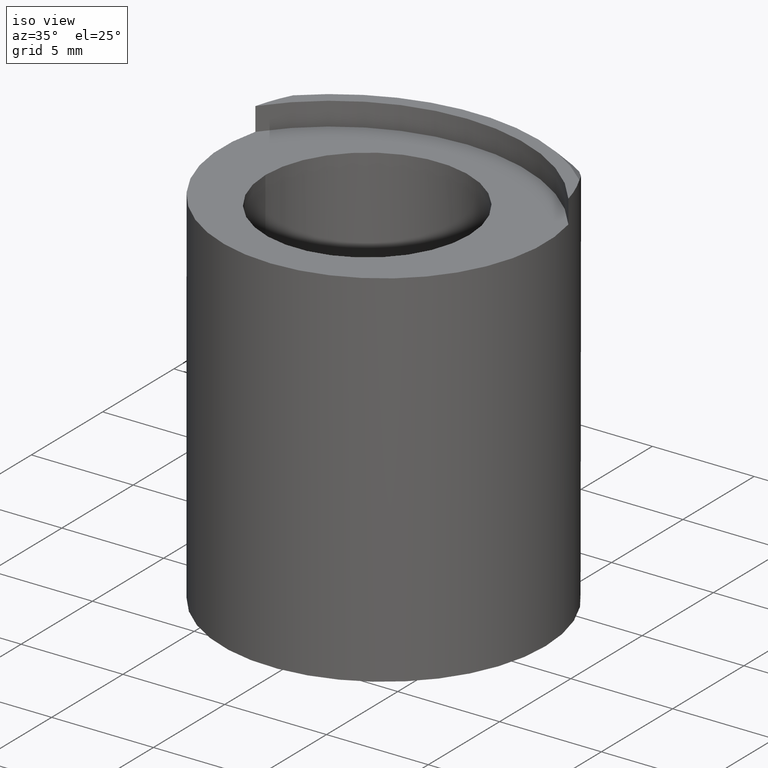
[diagram: clean part render]
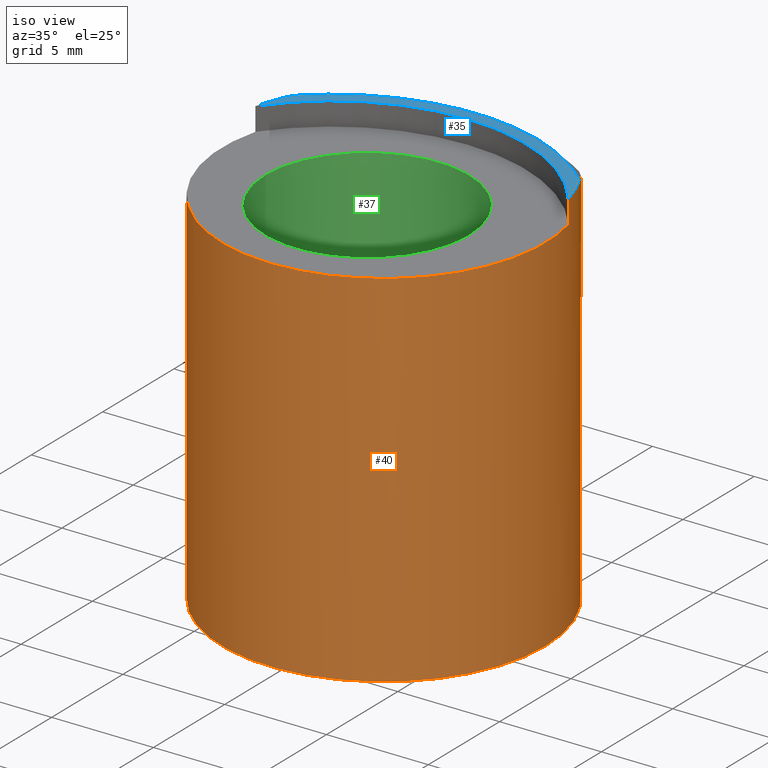
[diagram: same view with three faces highlighted in distinct colors, each labeled with its STEP entity id]
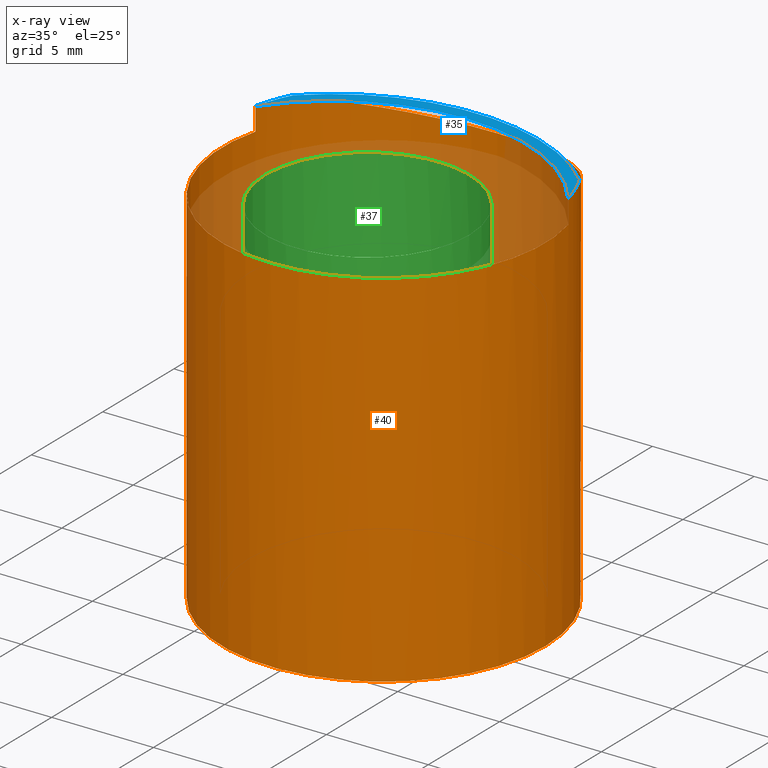
[diagram: x-ray of the same camera — body ghosted, the three highlighted faces saturated]
A machine part, iso view with three faces highlighted in distinct colors.
The next image is the same camera in x-ray (body ghosted, the three faces saturated) — at least one of them is partly hidden behind the body in this view.
Their STEP definitions:

[orange] entity #40 — the highlighted cylindrical surface (bore or boss wall) has radius 7.9375 mm, axis along (-0, 0, -1).
#4 = EDGE_CURVE ( 'NONE', #220, #214, #28, .T. ) ;
#6 = EDGE_CURVE ( 'NONE', #206, #211, #289, .T. ) ;
#7 = EDGE_CURVE ( 'NONE', #206, #214, #259, .T. ) ;
#8 = EDGE_CURVE ( 'NONE', #220, #222, #230, .T. ) ;
#9 = EDGE_CURVE ( 'NONE', #255, #255, #292, .T. ) ;
#10 = EDGE_CURVE ( 'NONE', #219, #211, #240, .T. ) ;
#14 = CARTESIAN_POINT ( 'NONE',  ( 0.3026978152996571100, 0.1232572296140836500, 0.7275000000000001500 ) ) ;
#15 = CARTESIAN_POINT ( 'NONE',  ( -0.2639185556648692100, 0.2152199699562641900, 0.7411820063344279900 ) ) ;
#16 = CARTESIAN_POINT ( 'NONE',  ( -0.2767838932136466600, 0.1906744635389196800, 0.7500000000000001100 ) ) ;
#18 = CARTESIAN_POINT ( 'NONE',  ( -0.09941511264093359800, 0.3422108810394044500, 0.6988311407053969800 ) ) ;
#19 = CARTESIAN_POINT ( 'NONE',  ( -0.2092963217709726500, 0.2780903867774015500, 0.7197299492056457000 ) ) ;
#20 = CARTESIAN_POINT ( 'NONE',  ( -0.2196203082285445900, 0.2683481359285012600, 0.7229924179772816400 ) ) ;
#21 = CARTESIAN_POINT ( 'NONE',  ( -0.1874002531696883600, 0.2960753518701791400, 0.7137647165990170800 ) ) ;
#22 = CARTESIAN_POINT ( 'NONE',  ( -0.1130841271041534100, 0.3372736901040893100, 0.7004043256038181600 ) ) ;
#23 = CARTESIAN_POINT ( 'NONE',  ( -0.1393090193203537200, 0.3256973525380113500, 0.7041197478792662300 ) ) ;
#24 = CARTESIAN_POINT ( 'NONE',  ( -0.1759110791811329700, 0.3042710807239839000, 0.7110767639496367000 ) ) ;
#25 = CARTESIAN_POINT ( 'NONE',  ( -0.1518653794547868400, 0.3190819396654117100, 0.7062542649927352500 ) ) ;
#27 = CARTESIAN_POINT ( 'NONE',  ( -0.2480265516793695400, 0.2377303253298724600, 0.7333804475190042200 ) ) ;
#28 = B_SPLINE_CURVE_WITH_KNOTS ( 'NONE', 3,
 ( #16, #15, #27, #20, #19, #21, #24, #25, #23, #22, #18, #127, #89, #86, #87, #92, #90, #130, #95, #115, #106, #93, #135, #133, #110, #149, #94, #138, #113, #128 ),
 .UNSPECIFIED., .F., .F.,
 ( 4, 2, 2, 2, 2, 2, 2, 2, 2, 2, 2, 2, 2, 2, 4 ),
 ( 6.486295182886069500E-007, 0.002179896535405388200, 0.003269520488348935700, 0.004359144441292484000, 0.005448768394236030600, 0.006538392347179575500, 0.007628016300123122200, 0.008717640253066668800, 0.01089688815895376000, 0.01198651211189730700, 0.01307613606484085000, 0.01416576001778439500, 0.01525538397072794000, 0.01634500792367148100, 0.01743463187661502600 ),
 .UNSPECIFIED. ) ;
#40 = ADVANCED_FACE ( 'NONE', ( #304, #248 ), #303, .T. ) ;
#50 = AXIS2_PLACEMENT_3D ( 'NONE', #168, #136, #91 ) ;
#58 = EDGE_CURVE ( 'NONE', #219, #222, #291, .T. ) ;
#66 = AXIS2_PLACEMENT_3D ( 'NONE', #139, #140, #141 ) ;
#69 = AXIS2_PLACEMENT_3D ( 'NONE', #159, #144, #146 ) ;
#70 = AXIS2_PLACEMENT_3D ( 'NONE', #150, #153, #154 ) ;
#76 = AXIS2_PLACEMENT_3D ( 'NONE', #156, #157, #158 ) ;
#86 = CARTESIAN_POINT ( 'NONE',  ( -0.02942585718906434000, 0.3570426406912264300, 0.6941327856468166900 ) ) ;
#87 = CARTESIAN_POINT ( 'NONE',  ( -0.01486769253461019800, 0.3580814827936573700, 0.6938058559884646700 ) ) ;
#89 = CARTESIAN_POINT ( 'NONE',  ( -0.05786213872511222100, 0.3530318435356197800, 0.6953988782048032800 ) ) ;
#90 = CARTESIAN_POINT ( 'NONE',  ( 0.05696458766030772900, 0.3542261892799814500, 0.6950149391125388700 ) ) ;
#91 = DIRECTION ( 'NONE',  ( -1.000000000000000000, 0.0000000000000000000, 0.0000000000000000000 ) ) ;
#92 = CARTESIAN_POINT ( 'NONE',  ( 0.02855312797940711200, 0.3581363225337340600, 0.6937885250939476200 ) ) ;
#93 = CARTESIAN_POINT ( 'NONE',  ( 0.1753123943739518000, 0.3046845034146523600, 0.7109409087088665000 ) ) ;
#94 = CARTESIAN_POINT ( 'NONE',  ( 0.2469634670038901600, 0.2375912590721830900, 0.7334663593087816800 ) ) ;
#95 = CARTESIAN_POINT ( 'NONE',  ( 0.1123229643740640000, 0.3375639856250709500, 0.7003113484474908800 ) ) ;
#97 = CARTESIAN_POINT ( 'NONE',  ( 0.3026978152996571700, 0.1232572296140837000, 0.7049999999999999600 ) ) ;
#106 = CARTESIAN_POINT ( 'NONE',  ( 0.1510245301884645700, 0.3195539709768076000, 0.7061009773158929400 ) ) ;
#107 = CARTESIAN_POINT ( 'NONE',  ( 0.3026978152996571700, 0.1232572296140837000, 0.7500000000000001100 ) ) ;
#108 = CARTESIAN_POINT ( 'NONE',  ( 0.3125005960460000000, 0.04560001194499999800, 0.0000000000000000000 ) ) ;
#110 = CARTESIAN_POINT ( 'NONE',  ( 0.2190499860789380200, 0.2689126451511062400, 0.7228018721960508500 ) ) ;
#111 = CARTESIAN_POINT ( 'NONE',  ( -0.2767838932136466600, 0.1906744635389196800, 0.7500000000000001100 ) ) ;
#113 = CARTESIAN_POINT ( 'NONE',  ( 0.2703509124914769100, 0.2029503339649999000, 0.7455890775983956600 ) ) ;
#115 = CARTESIAN_POINT ( 'NONE',  ( 0.1384264058692225900, 0.3261308864110156700, 0.7039797748760724400 ) ) ;
#121 = CARTESIAN_POINT ( 'NONE',  ( -0.3026959789764594500, 0.1232597406959595300, 0.7049999999999999600 ) ) ;
#125 = CARTESIAN_POINT ( 'NONE',  ( -0.3026959789764594500, 0.1232597406959595300, 0.7500000000000001100 ) ) ;
#127 = CARTESIAN_POINT ( 'NONE',  ( -0.07185953313661697100, 0.3500628383007320900, 0.6963371016701023200 ) ) ;
#128 = CARTESIAN_POINT ( 'NONE',  ( 0.2767862887898799300, 0.1906721674135478400, 0.7500000000000001100 ) ) ;
#130 = CARTESIAN_POINT ( 'NONE',  ( 0.09877519526621123000, 0.3424324890564950400, 0.6987602969720730900 ) ) ;
#131 = CARTESIAN_POINT ( 'NONE',  ( 0.2767862887898799300, 0.1906721674135478400, 0.7500000000000001100 ) ) ;
#133 = CARTESIAN_POINT ( 'NONE',  ( 0.2088432850167535600, 0.2784943385198047600, 0.7195946292584773900 ) ) ;
#135 = CARTESIAN_POINT ( 'NONE',  ( 0.1870223553326164600, 0.2963546682140423300, 0.7136723516635438100 ) ) ;
#136 = DIRECTION ( 'NONE',  ( -0.0000000000000000000, 0.0000000000000000000, -1.000000000000000000 ) ) ;
#137 = DIRECTION ( 'NONE',  ( -0.0000000000000000000, -0.0000000000000000000, -1.000000000000000000 ) ) ;
#138 = CARTESIAN_POINT ( 'NONE',  ( 0.2631053243699658700, 0.2147957581645392700, 0.7414062346094290000 ) ) ;
#139 = CARTESIAN_POINT ( 'NONE',  ( 5.960459999999999900E-007, 0.04560001194499999800, 0.7500000000000001100 ) ) ;
#140 = DIRECTION ( 'NONE',  ( 0.0000000000000000000, 0.0000000000000000000, 1.000000000000000000 ) ) ;
#141 = DIRECTION ( 'NONE',  ( 1.000000000000000000, 0.0000000000000000000, 0.0000000000000000000 ) ) ;
#144 = DIRECTION ( 'NONE',  ( 0.0000000000000000000, 0.0000000000000000000, 1.000000000000000000 ) ) ;
#145 = DIRECTION ( 'NONE',  ( 0.0000000000000000000, 0.0000000000000000000, 1.000000000000000000 ) ) ;
#146 = DIRECTION ( 'NONE',  ( 1.000000000000000000, 0.0000000000000000000, 0.0000000000000000000 ) ) ;
#149 = CARTESIAN_POINT ( 'NONE',  ( 0.2380910334008283200, 0.2484894179361305200, 0.7297279134965609600 ) ) ;
#150 = CARTESIAN_POINT ( 'NONE',  ( 5.960459999999999900E-007, 0.04560001194499999800, 0.0000000000000000000 ) ) ;
#153 = DIRECTION ( 'NONE',  ( 0.0000000000000000000, 0.0000000000000000000, 1.000000000000000000 ) ) ;
#154 = DIRECTION ( 'NONE',  ( 1.000000000000000000, 0.0000000000000000000, 0.0000000000000000000 ) ) ;
#156 = CARTESIAN_POINT ( 'NONE',  ( 5.960459999999999900E-007, 0.04560001194499999800, 0.7049999999999999600 ) ) ;
#157 = DIRECTION ( 'NONE',  ( 0.0000000000000000000, 0.0000000000000000000, 1.000000000000000000 ) ) ;
#158 = DIRECTION ( 'NONE',  ( 1.000000000000000000, 0.0000000000000000000, 0.0000000000000000000 ) ) ;
#159 = CARTESIAN_POINT ( 'NONE',  ( 5.960459999999999900E-007, 0.04560001194499999800, 0.7500000000000001100 ) ) ;
#161 = CARTESIAN_POINT ( 'NONE',  ( -0.3026959789764593900, 0.1232597406959595300, 0.7275000000000001500 ) ) ;
#168 = CARTESIAN_POINT ( 'NONE',  ( 5.960459999999999900E-007, 0.04560001194499999800, 0.7500000000000001100 ) ) ;
#206 = VERTEX_POINT ( 'NONE', #107 ) ;
#211 = VERTEX_POINT ( 'NONE', #97 ) ;
#214 = VERTEX_POINT ( 'NONE', #131 ) ;
#217 = ORIENTED_EDGE ( 'NONE', *, *, #8, .F. ) ;
#219 = VERTEX_POINT ( 'NONE', #121 ) ;
#220 = VERTEX_POINT ( 'NONE', #111 ) ;
#222 = VERTEX_POINT ( 'NONE', #125 ) ;
#224 = ORIENTED_EDGE ( 'NONE', *, *, #58, .T. ) ;
#230 = CIRCLE ( 'NONE', #69, 0.3125000000000000000 ) ;
#240 = CIRCLE ( 'NONE', #76, 0.3125000000000000000 ) ;
#246 = VECTOR ( 'NONE', #145, 39.37007874015748100 ) ;
#248 = FACE_OUTER_BOUND ( 'NONE', #264, .T. ) ;
#255 = VERTEX_POINT ( 'NONE', #108 ) ;
#259 = CIRCLE ( 'NONE', #66, 0.3125000000000000000 ) ;
#264 = EDGE_LOOP ( 'NONE', ( #281 ) ) ;
#265 = ORIENTED_EDGE ( 'NONE', *, *, #6, .T. ) ;
#273 = EDGE_LOOP ( 'NONE', ( #217, #294, #275, #265, #295, #224 ) ) ;
#275 = ORIENTED_EDGE ( 'NONE', *, *, #7, .F. ) ;
#278 = VECTOR ( 'NONE', #137, 39.37007874015748100 ) ;
#281 = ORIENTED_EDGE ( 'NONE', *, *, #9, .T. ) ;
#289 = LINE ( 'NONE', #14, #278 ) ;
#291 = LINE ( 'NONE', #161, #246 ) ;
#292 = CIRCLE ( 'NONE', #70, 0.3125000000000000000 ) ;
#294 = ORIENTED_EDGE ( 'NONE', *, *, #4, .T. ) ;
#295 = ORIENTED_EDGE ( 'NONE', *, *, #10, .F. ) ;
#303 = CYLINDRICAL_SURFACE ( 'NONE', #50, 0.3125000000000000000 ) ;
#304 = FACE_OUTER_BOUND ( 'NONE', #273, .T. ) ;

[blue] entity #35 — the highlighted planar face has unit normal (0, 0, 1).
#7 = EDGE_CURVE ( 'NONE', #206, #214, #259, .T. ) ;
#8 = EDGE_CURVE ( 'NONE', #220, #222, #230, .T. ) ;
#12 = EDGE_CURVE ( 'NONE', #206, #222, #288, .T. ) ;
#35 = ADVANCED_FACE ( 'NONE', ( #298 ), #171, .T. ) ;
#52 = AXIS2_PLACEMENT_3D ( 'NONE', #112, #102, #99 ) ;
#61 = AXIS2_PLACEMENT_3D ( 'NONE', #103, #120, #163 ) ;
#63 = EDGE_CURVE ( 'NONE', #220, #214, #279, .T. ) ;
#66 = AXIS2_PLACEMENT_3D ( 'NONE', #139, #140, #141 ) ;
#69 = AXIS2_PLACEMENT_3D ( 'NONE', #159, #144, #146 ) ;
#73 = AXIS2_PLACEMENT_3D ( 'NONE', #179, #181, #184 ) ;
#99 = DIRECTION ( 'NONE',  ( -1.000000000000000000, 0.0000000000000000000, 0.0000000000000000000 ) ) ;
#102 = DIRECTION ( 'NONE',  ( -0.0000000000000000000, 0.0000000000000000000, -1.000000000000000000 ) ) ;
#103 = CARTESIAN_POINT ( 'NONE',  ( 5.960459999999999900E-007, 0.04560001194499999800, 0.7500000000000001100 ) ) ;
#107 = CARTESIAN_POINT ( 'NONE',  ( 0.3026978152996571700, 0.1232572296140837000, 0.7500000000000001100 ) ) ;
#111 = CARTESIAN_POINT ( 'NONE',  ( -0.2767838932136466600, 0.1906744635389196800, 0.7500000000000001100 ) ) ;
#112 = CARTESIAN_POINT ( 'NONE',  ( 0.0000000000000000000, -0.09810002148200000500, 0.7500000000000001100 ) ) ;
#120 = DIRECTION ( 'NONE',  ( 0.0000000000000000000, 0.0000000000000000000, 1.000000000000000000 ) ) ;
#125 = CARTESIAN_POINT ( 'NONE',  ( -0.3026959789764594500, 0.1232597406959595300, 0.7500000000000001100 ) ) ;
#131 = CARTESIAN_POINT ( 'NONE',  ( 0.2767862887898799300, 0.1906721674135478400, 0.7500000000000001100 ) ) ;
#139 = CARTESIAN_POINT ( 'NONE',  ( 5.960459999999999900E-007, 0.04560001194499999800, 0.7500000000000001100 ) ) ;
#140 = DIRECTION ( 'NONE',  ( 0.0000000000000000000, 0.0000000000000000000, 1.000000000000000000 ) ) ;
#141 = DIRECTION ( 'NONE',  ( 1.000000000000000000, 0.0000000000000000000, 0.0000000000000000000 ) ) ;
#144 = DIRECTION ( 'NONE',  ( 0.0000000000000000000, 0.0000000000000000000, 1.000000000000000000 ) ) ;
#146 = DIRECTION ( 'NONE',  ( 1.000000000000000000, 0.0000000000000000000, 0.0000000000000000000 ) ) ;
#159 = CARTESIAN_POINT ( 'NONE',  ( 5.960459999999999900E-007, 0.04560001194499999800, 0.7500000000000001100 ) ) ;
#163 = DIRECTION ( 'NONE',  ( 1.000000000000000000, 0.0000000000000000000, 0.0000000000000000000 ) ) ;
#171 = PLANE ( 'NONE',  #61 ) ;
#179 = CARTESIAN_POINT ( 'NONE',  ( 0.0000000000000000000, -0.09810002148200000500, 0.7500000000000001100 ) ) ;
#181 = DIRECTION ( 'NONE',  ( 0.0000000000000000000, 0.0000000000000000000, 1.000000000000000000 ) ) ;
#184 = DIRECTION ( 'NONE',  ( 1.000000000000000000, 0.0000000000000000000, 0.0000000000000000000 ) ) ;
#206 = VERTEX_POINT ( 'NONE', #107 ) ;
#214 = VERTEX_POINT ( 'NONE', #131 ) ;
#215 = ORIENTED_EDGE ( 'NONE', *, *, #12, .F. ) ;
#220 = VERTEX_POINT ( 'NONE', #111 ) ;
#222 = VERTEX_POINT ( 'NONE', #125 ) ;
#230 = CIRCLE ( 'NONE', #69, 0.3125000000000000000 ) ;
#252 = ORIENTED_EDGE ( 'NONE', *, *, #8, .T. ) ;
#256 = ORIENTED_EDGE ( 'NONE', *, *, #63, .F. ) ;
#259 = CIRCLE ( 'NONE', #66, 0.3125000000000000000 ) ;
#267 = EDGE_LOOP ( 'NONE', ( #256, #252, #215, #290 ) ) ;
#279 = CIRCLE ( 'NONE', #52, 0.4000000334269995200 ) ;
#288 = CIRCLE ( 'NONE', #73, 0.3749999999999999400 ) ;
#290 = ORIENTED_EDGE ( 'NONE', *, *, #7, .T. ) ;
#298 = FACE_OUTER_BOUND ( 'NONE', #267, .T. ) ;

[green] entity #37 — the highlighted cylindrical surface (bore or boss wall) has radius 5.0013 mm, axis along (-0, 0, -1).
#37 = ADVANCED_FACE ( 'NONE', ( #284, #209 ), #207, .F. ) ;
#48 = AXIS2_PLACEMENT_3D ( 'NONE', #165, #183, #100 ) ;
#53 = AXIS2_PLACEMENT_3D ( 'NONE', #122, #126, #132 ) ;
#62 = EDGE_CURVE ( 'NONE', #208, #208, #257, .T. ) ;
#65 = EDGE_CURVE ( 'NONE', #261, #261, #244, .T. ) ;
#82 = AXIS2_PLACEMENT_3D ( 'NONE', #123, #134, #160 ) ;
#100 = DIRECTION ( 'NONE',  ( -1.000000000000000000, 0.0000000000000000000, 0.0000000000000000000 ) ) ;
#101 = CARTESIAN_POINT ( 'NONE',  ( -0.1968999952080000300, 0.0000000000000000000, 0.5000000000000000000 ) ) ;
#122 = CARTESIAN_POINT ( 'NONE',  ( 0.0000000000000000000, 0.0000000000000000000, 0.7049999999999999600 ) ) ;
#123 = CARTESIAN_POINT ( 'NONE',  ( 0.0000000000000000000, 0.0000000000000000000, 0.5000000000000000000 ) ) ;
#126 = DIRECTION ( 'NONE',  ( 0.0000000000000000000, 0.0000000000000000000, 1.000000000000000000 ) ) ;
#132 = DIRECTION ( 'NONE',  ( 1.000000000000000000, 0.0000000000000000000, 0.0000000000000000000 ) ) ;
#134 = DIRECTION ( 'NONE',  ( 0.0000000000000000000, 0.0000000000000000000, -1.000000000000000000 ) ) ;
#160 = DIRECTION ( 'NONE',  ( -1.000000000000000000, 0.0000000000000000000, 0.0000000000000000000 ) ) ;
#165 = CARTESIAN_POINT ( 'NONE',  ( 0.0000000000000000000, 0.0000000000000000000, 0.7500000000000001100 ) ) ;
#183 = DIRECTION ( 'NONE',  ( -0.0000000000000000000, 0.0000000000000000000, -1.000000000000000000 ) ) ;
#204 = CARTESIAN_POINT ( 'NONE',  ( 0.1968999952080000300, 0.0000000000000000000, 0.7049999999999999600 ) ) ;
#207 = CYLINDRICAL_SURFACE ( 'NONE', #48, 0.1968999952080000300 ) ;
#208 = VERTEX_POINT ( 'NONE', #101 ) ;
#209 = FACE_OUTER_BOUND ( 'NONE', #239, .T. ) ;
#234 = ORIENTED_EDGE ( 'NONE', *, *, #65, .T. ) ;
#239 = EDGE_LOOP ( 'NONE', ( #260 ) ) ;
#244 = CIRCLE ( 'NONE', #53, 0.1968999952080000300 ) ;
#257 = CIRCLE ( 'NONE', #82, 0.1968999952080000300 ) ;
#260 = ORIENTED_EDGE ( 'NONE', *, *, #62, .T. ) ;
#261 = VERTEX_POINT ( 'NONE', #204 ) ;
#269 = EDGE_LOOP ( 'NONE', ( #234 ) ) ;
#284 = FACE_OUTER_BOUND ( 'NONE', #269, .T. ) ;